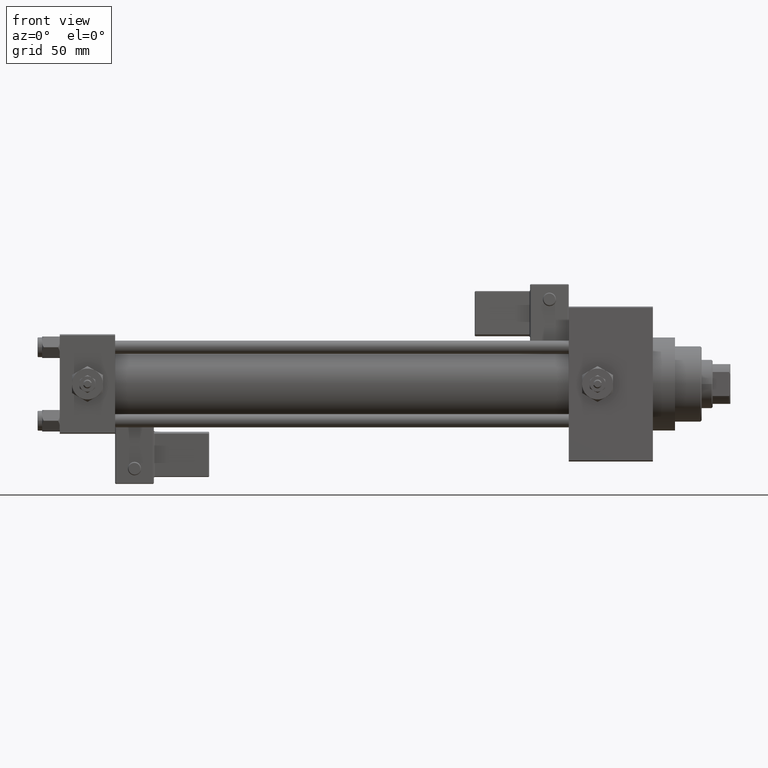
[diagram: clean part render]
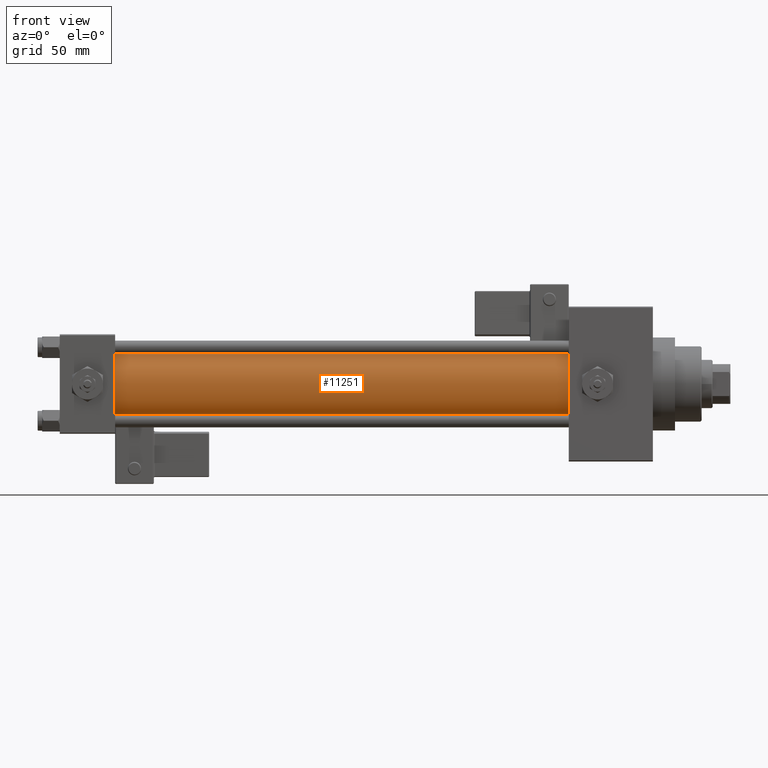
[diagram: same view with one face highlighted and labeled with its STEP entity id]
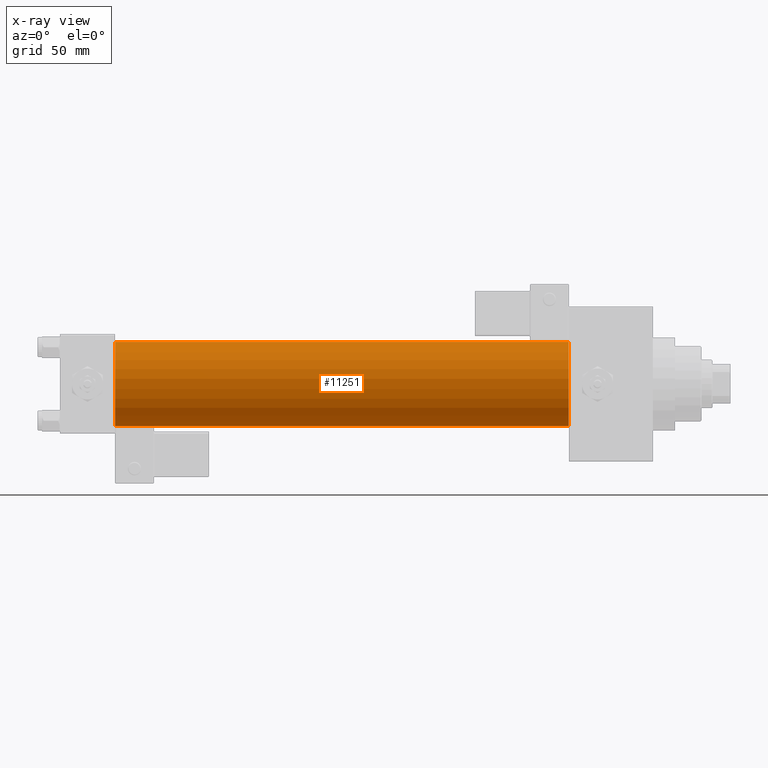
[diagram: x-ray of the same camera — body ghosted, the highlighted face saturated]
A machine part, front view. The second image highlights one B-rep face of the part: STEP entity #11251.
The next image is the same camera in x-ray: the body ghosted, the highlighted face saturated — about 0% of this face is hidden behind the body in this view.
In plain terms, the highlighted cylindrical surface (partial cylindrical patch) has radius 19 mm, axis along (-1, -0, -0).
Its self-contained STEP definition (entity closure, byte-faithful):
#267 = ORIENTED_EDGE ( 'NONE', *, *, #47667, .F. ) ;
#3272 = VERTEX_POINT ( 'NONE', #14357 ) ;
#3682 = VERTEX_POINT ( 'NONE', #12189 ) ;
#4678 = DIRECTION ( 'NONE',  ( -1.000000000000000000, -0.000000000000000000, -0.000000000000000000 ) ) ;
#7409 = CIRCLE ( 'NONE', #8264, 19.00000000000000000 ) ;
#8078 = LINE ( 'NONE', #20770, #20738 ) ;
#8264 = AXIS2_PLACEMENT_3D ( 'NONE', #16886, #28096, #40791 ) ;
#10568 = CARTESIAN_POINT ( 'NONE',  ( 229.9999999999999716, -2.602085213965210642E-15, 19.00000000000000000 ) ) ;
#11251 = ADVANCED_FACE ( 'NONE', ( #28583 ), #35873, .T. ) ;
#12189 = CARTESIAN_POINT ( 'NONE',  ( 24.99999999999999289, -2.602085213965210642E-15, 19.00000000000000000 ) ) ;
#14357 = CARTESIAN_POINT ( 'NONE',  ( 229.9999999999999716, -2.752562955852400657E-16, -19.00000000000000000 ) ) ;
#15472 = LINE ( 'NONE', #10568, #47056 ) ;
#16886 = CARTESIAN_POINT ( 'NONE',  ( 229.9999999999999716, -2.602085213965210642E-15, 0.000000000000000000 ) ) ;
#20738 = VECTOR ( 'NONE', #28836, 1000.000000000000000 ) ;
#20770 = CARTESIAN_POINT ( 'NONE',  ( 229.9999999999999716, -2.752562955852400657E-16, -19.00000000000000000 ) ) ;
#20773 = CARTESIAN_POINT ( 'NONE',  ( 229.9999999999999716, -2.602085213965210642E-15, 0.000000000000000000 ) ) ;
#21968 = EDGE_LOOP ( 'NONE', ( #267, #30575, #28302, #23312 ) ) ;
#23312 = ORIENTED_EDGE ( 'NONE', *, *, #37933, .T. ) ;
#23561 = EDGE_CURVE ( 'NONE', #27071, #3682, #15472, .T. ) ;
#26222 = CIRCLE ( 'NONE', #32848, 19.00000000000000000 ) ;
#27071 = VERTEX_POINT ( 'NONE', #46811 ) ;
#28096 = DIRECTION ( 'NONE',  ( 1.000000000000000000, 0.000000000000000000, 0.000000000000000000 ) ) ;
#28302 = ORIENTED_EDGE ( 'NONE', *, *, #23561, .T. ) ;
#28583 = FACE_OUTER_BOUND ( 'NONE', #21968, .T. ) ;
#28836 = DIRECTION ( 'NONE',  ( -1.000000000000000000, -0.000000000000000000, -0.000000000000000000 ) ) ;
#30575 = ORIENTED_EDGE ( 'NONE', *, *, #49441, .F. ) ;
#30719 = VERTEX_POINT ( 'NONE', #43751 ) ;
#32848 = AXIS2_PLACEMENT_3D ( 'NONE', #48011, #35068, #47503 ) ;
#35068 = DIRECTION ( 'NONE',  ( 1.000000000000000000, -0.000000000000000000, 0.000000000000000000 ) ) ;
#35873 = CYLINDRICAL_SURFACE ( 'NONE', #45886, 19.00000000000000000 ) ;
#37933 = EDGE_CURVE ( 'NONE', #3682, #30719, #26222, .T. ) ;
#40015 = DIRECTION ( 'NONE',  ( 0.000000000000000000, 0.000000000000000000, 1.000000000000000000 ) ) ;
#40791 = DIRECTION ( 'NONE',  ( 0.000000000000000000, 0.000000000000000000, -1.000000000000000000 ) ) ;
#43751 = CARTESIAN_POINT ( 'NONE',  ( 24.99999999999999289, -2.752562955852400657E-16, -19.00000000000000000 ) ) ;
#45886 = AXIS2_PLACEMENT_3D ( 'NONE', #20773, #4678, #40015 ) ;
#46811 = CARTESIAN_POINT ( 'NONE',  ( 229.9999999999999716, -2.602085213965210642E-15, 19.00000000000000000 ) ) ;
#47056 = VECTOR ( 'NONE', #50771, 1000.000000000000000 ) ;
#47503 = DIRECTION ( 'NONE',  ( 0.000000000000000000, 0.000000000000000000, 1.000000000000000000 ) ) ;
#47667 = EDGE_CURVE ( 'NONE', #3272, #30719, #8078, .T. ) ;
#48011 = CARTESIAN_POINT ( 'NONE',  ( 24.99999999999999289, -2.602085213965210642E-15, 0.000000000000000000 ) ) ;
#49441 = EDGE_CURVE ( 'NONE', #27071, #3272, #7409, .T. ) ;
#50771 = DIRECTION ( 'NONE',  ( -1.000000000000000000, -0.000000000000000000, -0.000000000000000000 ) ) ;